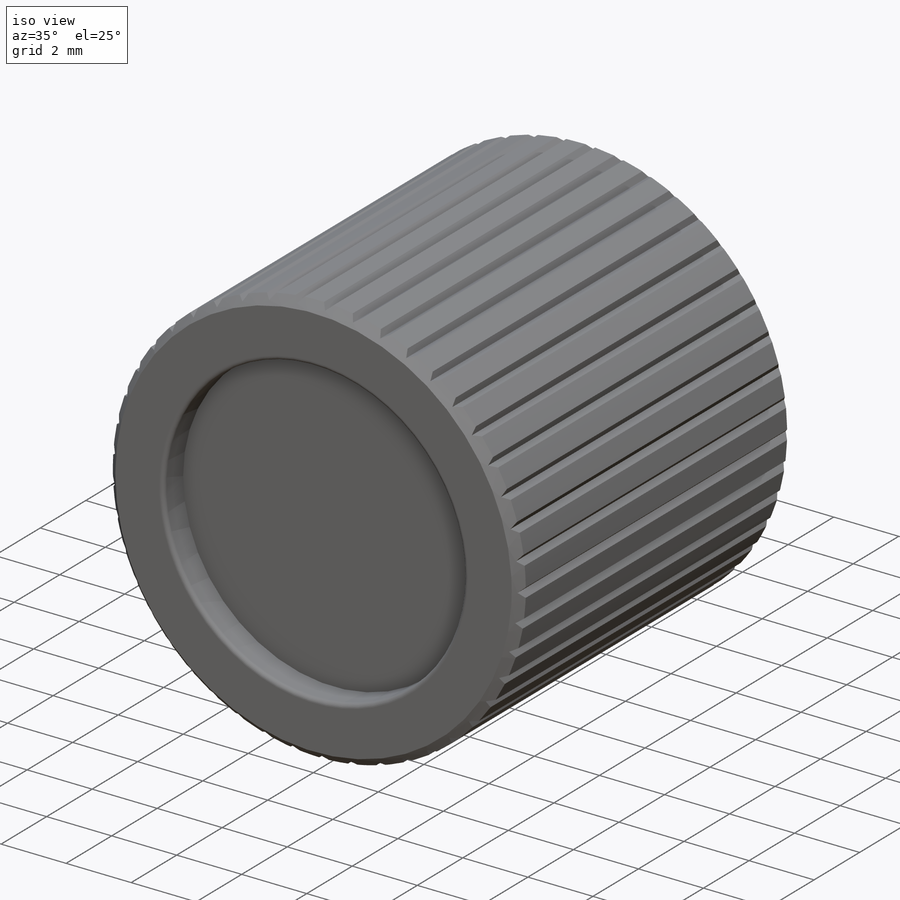
[diagram: iso view]
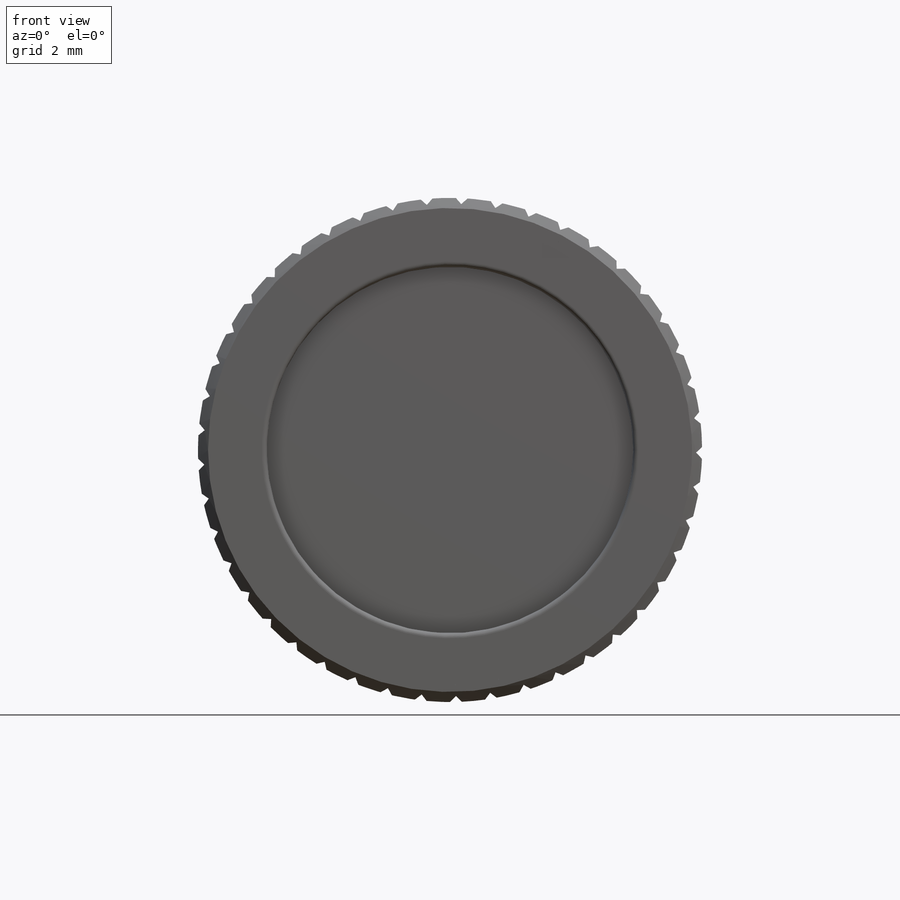
[diagram: front view]
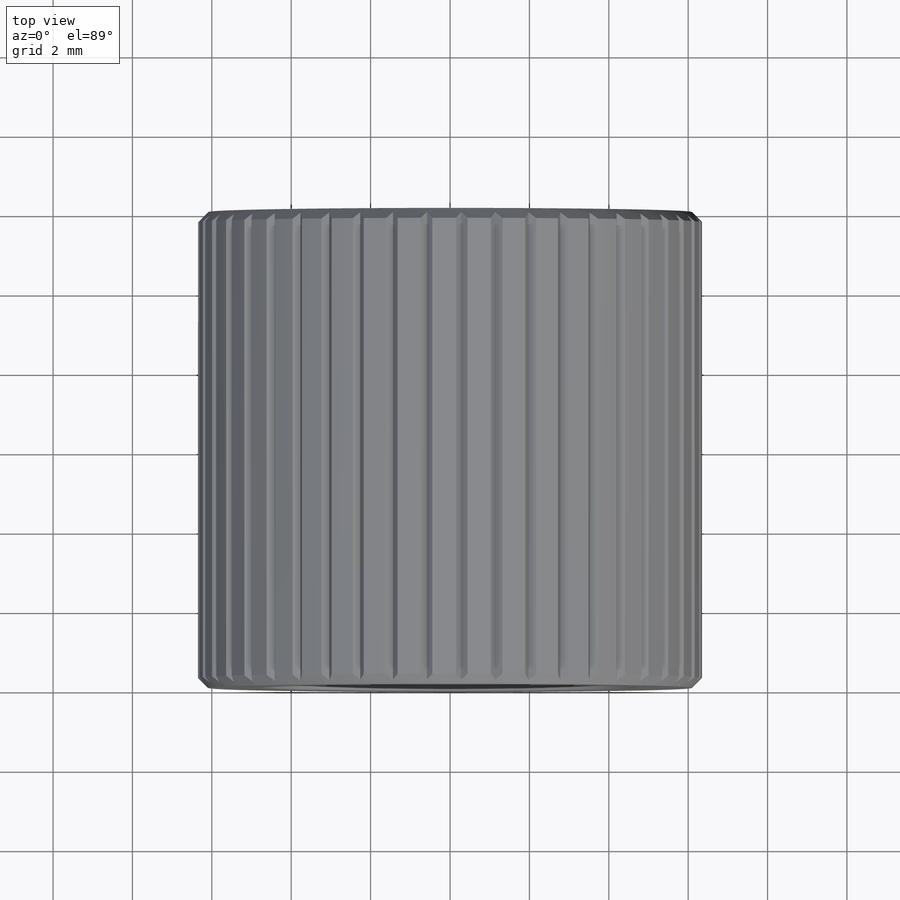
[diagram: top view]
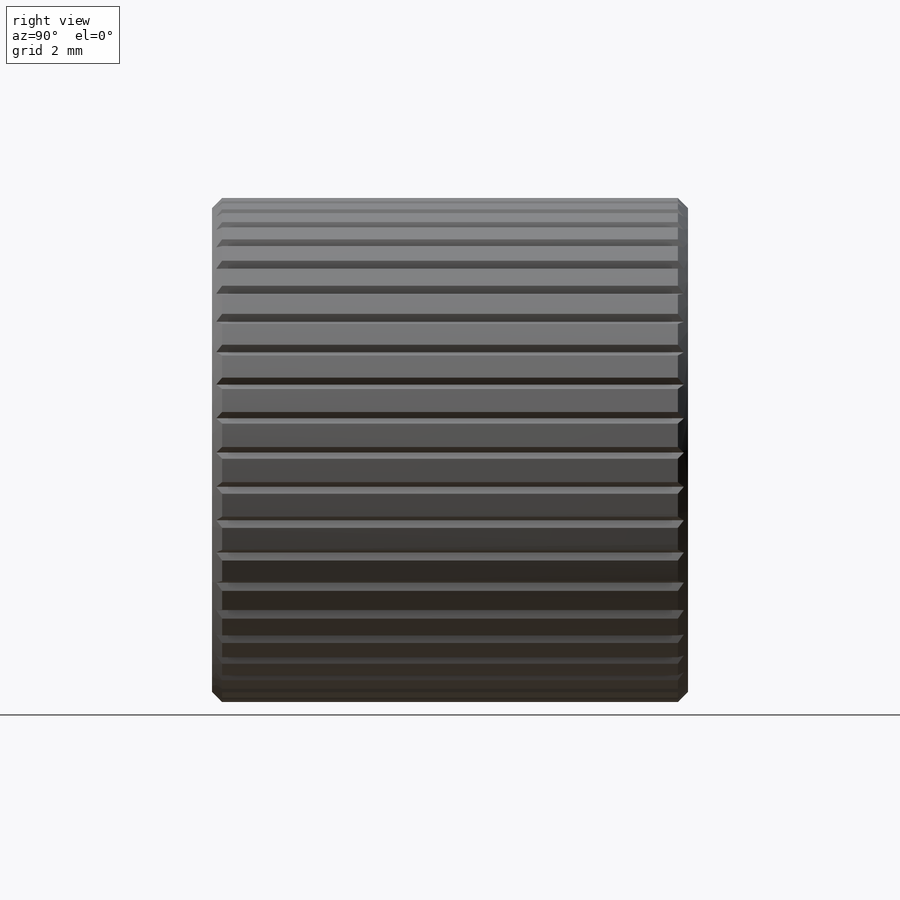
[diagram: right view]
SOLIDWORKS PART (.sldprt)
format: sldprt  version: not decoded by parser v0  size: 840,704 bytes
history: native  units: mm
features: sketch x7, cut_extrude x3, extrude x2, material x1, shell x1, chamfer x1, fillet x1, helix x1, sweep x1 (+16 scaffold rows collapsed)
feature tree (34):
  scaffold x16  (default folders/planes/origin — collapsed)
  material  "6061-T6 (SS)"
  sketch  "Sketch1"  dims[D1=12.7mm]
  extrude  "Extrude1"  Depth=11.9888mm
  shell  "Shell1"  Thickness=0.8636mm
  sketch  "Sketch2"  dims[D1=9.2329mm]
  cut_extrude  "Extrude2"  [1 undecoded]
  chamfer  "Chamfer1"  Distance=0.254mm Angle=45deg
  sketch  "Sketch3"  dims[c1.D1=~5.178018mm c2.D1=~2.666667deg]
  cut_extrude  "Extrude3"  [1 undecoded]
  fillet  "Fillet1"  Radius=0.127mm
  sketch  "Sketch4"  dims[D1=11.6586mm]
  cut_extrude  "Extrude4"  Depth=3.175mm
  sketch  "Sketch6"
  sketch  "Sketch7"
  helix  "Helix/Spiral1"  Pitch=8.334375mm
  sweep  "Cut-Sweep3"
  sketch  "Sketch8"
  extrude  "Extrude5"  Depth=0.79375mm
decode coverage: 11 of 17 modeling features carry decoded parameters
note: ~ marks probable driven/reference dimensions
note: 2 parameter values undecoded
note: suppression state not decoded; provenance and decode notes live in map.json
